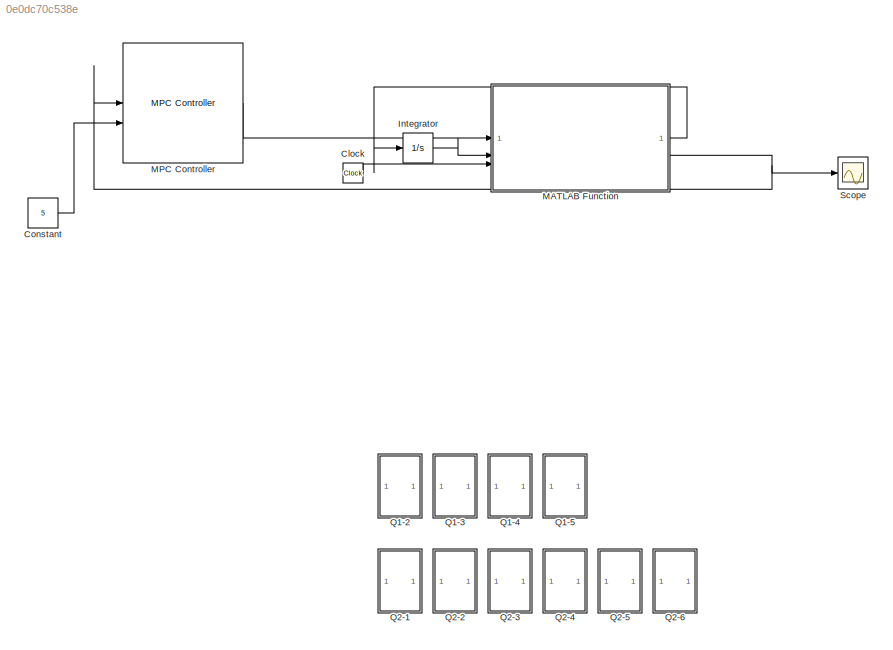
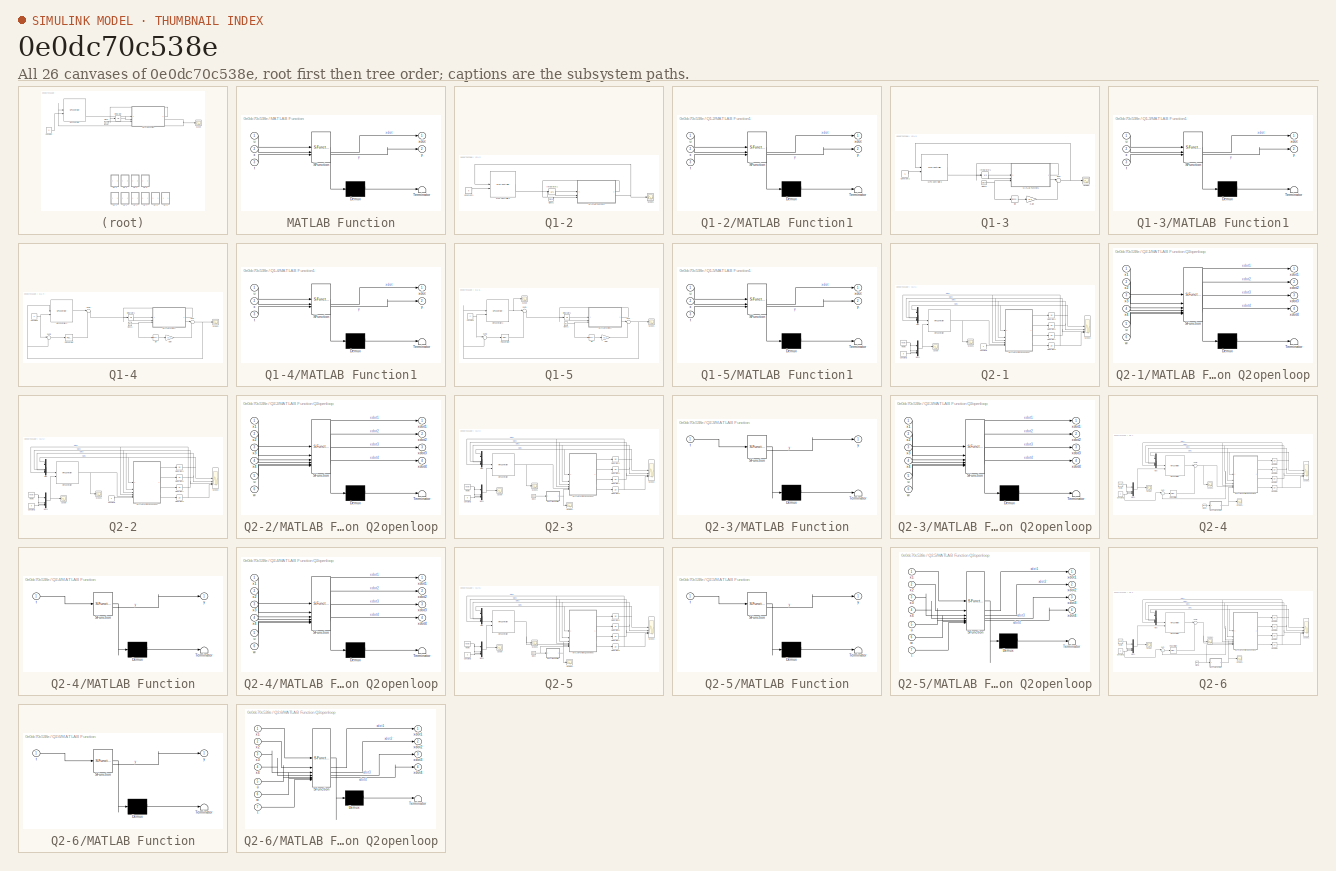
[diagram: thumbnail index - all 26 canvases of the model, root first then tree order]
MODEL slx_0e0dc70c538e
KIND model
CONFIG AbsTol = auto
CONFIG EnableMultiTasking = off
CONFIG FixedStep = auto
CONFIG MaxStep = auto
CONFIG MinStep = auto
CONFIG RelTol = 1e-3
CONFIG SampleTimeConstraint = Unconstrained
CONFIG SolverName = VariableStepAuto
CONFIG StartTime = 0.0
CONFIG StopTime = 50
BLOCK [Clock] Clock
  Commented = on
BLOCK [Constant] Constant
  Commented = on
  Value = 5
BLOCK [Integrator] Integrator
  Commented = on
  InitialCondition = [0 0 0 0]
BLOCK [SubSystem] MATLAB Function
  Commented = on
  ErrorFcn = Stateflow.Translate.translate
  LibrarySourceBlock = simulink/User-Defined\nFunctions/MATLAB Function
  PermitHierarchicalResolution = ExplicitOnly
  SFBlockType = MATLAB Function
  TreatAsAtomicUnit = on
BLOCK [Demux] MATLAB Function/ Demux 
  Outputs = 1
BLOCK [S-Function] MATLAB Function/ SFunction 
  EnableBusSupport = on
  FunctionName = sf_sfun
  PortCounts = [3 3]
  SFcnIsStateOwnerBlock = off
  SFunctionDeploymentMode = off
  Tag = Stateflow S-Function 2
BLOCK [Terminator] MATLAB Function/ Terminator 
BLOCK [Inport] MATLAB Function/t
  Port = 3
BLOCK [Inport] MATLAB Function/u
BLOCK [Inport] MATLAB Function/x
  Port = 2
BLOCK [Outport] MATLAB Function/xdot
BLOCK [Outport] MATLAB Function/y
  Port = 2
BLOCK [Reference] MPC Controller  REF=mpclib/MPC Controller  (lib defined in mdl_ae329e0e0455)
  Commented = on
  SCDEnableBlockLinearizationSpecification = on
  SourceBlock = mpclib/MPC Controller
  SourceType = MPC
BLOCK [SubSystem] Q1-2
  Commented = on
BLOCK [Clock] Q1-2/Clock1
BLOCK [Constant] Q1-2/Constant1
  Value = 5
BLOCK [Integrator] Q1-2/Integrator1
  InitialCondition = [0 0 0 0]
BLOCK [SubSystem] Q1-2/MATLAB Function1
  ErrorFcn = Stateflow.Translate.translate
  LibrarySourceBlock = simulink/User-Defined\nFunctions/MATLAB Function
  PermitHierarchicalResolution = ExplicitOnly
  SFBlockType = MATLAB Function
  TreatAsAtomicUnit = on
BLOCK [Demux] Q1-2/MATLAB Function1/ Demux 
  Outputs = 1
BLOCK [S-Function] Q1-2/MATLAB Function1/ SFunction 
  EnableBusSupport = on
  FunctionName = sf_sfun
  PortCounts = [3 3]
  SFcnIsStateOwnerBlock = off
  SFunctionDeploymentMode = off
  Tag = Stateflow S-Function 1
BLOCK [Terminator] Q1-2/MATLAB Function1/ Terminator 
BLOCK [Inport] Q1-2/MATLAB Function1/t
  Port = 3
BLOCK [Inport] Q1-2/MATLAB Function1/u
BLOCK [Inport] Q1-2/MATLAB Function1/x
  Port = 2
BLOCK [Outport] Q1-2/MATLAB Function1/xdot
BLOCK [Outport] Q1-2/MATLAB Function1/y
  Port = 2
BLOCK [Reference] Q1-2/MPC Controller1  REF=mpclib/MPC Controller  (lib defined in mdl_ae329e0e0455)
  SCDEnableBlockLinearizationSpecification = on
  SourceBlock = mpclib/MPC Controller
  SourceType = MPC
BLOCK [Scope] Q1-2/Scope1
  Floating = off
  NumInputPorts = 1
  ScopeSpecificationString = Simulink.scopes.TimeScopeBlockCfg('CurrentConfiguration', extmgr.ConfigurationSet(extmgr.Configuration('Core','General UI',true),extmgr.Configuration('Core','Source UI',true),extmgr.Configuration('Sources','WiredSimulink',true,'DataLoggingVariableName','ScopeData1'),extmgr.Configuration('Visuals','Time Domain',true,'SerializedDisplays',{struct('MinYLimReal','-0.62568','MaxYLimReal','5.63109','YLab...<+1406ch>
BLOCK [SubSystem] Q1-3
  Commented = on
BLOCK [Clock] Q1-3/Clock1
BLOCK [Constant] Q1-3/Constant1
  Value = 5
BLOCK [Gain] Q1-3/Gain
  Gain = 0.1
BLOCK [Integrator] Q1-3/Integrator1
  InitialCondition = [0 0 0 0]
BLOCK [SubSystem] Q1-3/MATLAB Function1
  ErrorFcn = Stateflow.Translate.translate
  LibrarySourceBlock = simulink/User-Defined\nFunctions/MATLAB Function
  PermitHierarchicalResolution = ExplicitOnly
  SFBlockType = MATLAB Function
  TreatAsAtomicUnit = on
BLOCK [Demux] Q1-3/MATLAB Function1/ Demux 
  Outputs = 1
BLOCK [S-Function] Q1-3/MATLAB Function1/ SFunction 
  EnableBusSupport = on
  FunctionName = sf_sfun
  PortCounts = [3 3]
  SFcnIsStateOwnerBlock = off
  SFunctionDeploymentMode = off
  Tag = Stateflow S-Function 3
BLOCK [Terminator] Q1-3/MATLAB Function1/ Terminator 
BLOCK [Inport] Q1-3/MATLAB Function1/t
  Port = 3
BLOCK [Inport] Q1-3/MATLAB Function1/u
BLOCK [Inport] Q1-3/MATLAB Function1/x
  Port = 2
BLOCK [Outport] Q1-3/MATLAB Function1/xdot
BLOCK [Outport] Q1-3/MATLAB Function1/y
  Port = 2
BLOCK [Reference] Q1-3/MPC Controller2  REF=mpclib/MPC Controller  (lib defined in mdl_ae329e0e0455)
  SCDEnableBlockLinearizationSpecification = on
  SourceBlock = mpclib/MPC Controller
  SourceType = MPC
BLOCK [Scope] Q1-3/Scope1
  Floating = off
  NumInputPorts = 1
  ScopeSpecificationString = Simulink.scopes.TimeScopeBlockCfg('CurrentConfiguration', extmgr.ConfigurationSet(extmgr.Configuration('Core','General UI',true),extmgr.Configuration('Core','Source UI',true),extmgr.Configuration('Sources','WiredSimulink',true,'DataLoggingVariableName','ScopeData1'),extmgr.Configuration('Visuals','Time Domain',true,'SerializedDisplays',{struct('MinYLimReal','-0.64453','MaxYLimReal','5.80081','YLab...<+1391ch>
BLOCK [Trigonometry] Q1-3/Sin
BLOCK [Sum] Q1-3/Sum
  Inputs = |++
BLOCK [SubSystem] Q1-4
  Commented = on
BLOCK [Clock] Q1-4/Clock1
BLOCK [Constant] Q1-4/Constant1
  Value = 5
BLOCK [Gain] Q1-4/Gain
  Gain = 0.1
BLOCK [Integrator] Q1-4/Integrator1
  InitialCondition = [0 0 0 0]
BLOCK [SubSystem] Q1-4/MATLAB Function1
  ErrorFcn = Stateflow.Translate.translate
  LibrarySourceBlock = simulink/User-Defined\nFunctions/MATLAB Function
  PermitHierarchicalResolution = ExplicitOnly
  SFBlockType = MATLAB Function
  TreatAsAtomicUnit = on
BLOCK [Demux] Q1-4/MATLAB Function1/ Demux 
  Outputs = 1
BLOCK [S-Function] Q1-4/MATLAB Function1/ SFunction 
  EnableBusSupport = on
  FunctionName = sf_sfun
  PortCounts = [3 3]
  SFcnIsStateOwnerBlock = off
  SFunctionDeploymentMode = off
  Tag = Stateflow S-Function 4
BLOCK [Terminator] Q1-4/MATLAB Function1/ Terminator 
BLOCK [Inport] Q1-4/MATLAB Function1/t
  Port = 3
BLOCK [Inport] Q1-4/MATLAB Function1/u
BLOCK [Inport] Q1-4/MATLAB Function1/x
  Port = 2
BLOCK [Outport] Q1-4/MATLAB Function1/xdot
BLOCK [Outport] Q1-4/MATLAB Function1/y
  Port = 2
BLOCK [Reference] Q1-4/MPC Controller2  REF=mpclib/MPC Controller  (lib defined in mdl_ae329e0e0455)
  SCDEnableBlockLinearizationSpecification = on
  SourceBlock = mpclib/MPC Controller
  SourceType = MPC
BLOCK [Reference] Q1-4/PID Controller  REF=slpidlib/PID Controller
  LibrarySourceBlock = simulink/Continuous/PID Controller
  SourceBlock = slpidlib/PID Controller
  SourceType = PID 1dof
BLOCK [Scope] Q1-4/Scope1
  Floating = off
  NumInputPorts = 1
  ScopeSpecificationString = Simulink.scopes.TimeScopeBlockCfg('CurrentConfiguration', extmgr.ConfigurationSet(extmgr.Configuration('Core','General UI',true),extmgr.Configuration('Core','Source UI',true),extmgr.Configuration('Sources','WiredSimulink',true,'DataLoggingVariableName','ScopeData1'),extmgr.Configuration('Visuals','Time Domain',true,'SerializedDisplays',{struct('MinYLimReal','4.47925','MaxYLimReal','5.93772','YLabe...<+1741ch>
BLOCK [Trigonometry] Q1-4/Sin
BLOCK [Sum] Q1-4/Sum
  Inputs = |++
BLOCK [Sum] Q1-4/Sum1
  Inputs = |++
BLOCK [Sum] Q1-4/Sum2
  Inputs = |+-
BLOCK [SubSystem] Q1-5
  Commented = on
BLOCK [Clock] Q1-5/Clock1
BLOCK [Constant] Q1-5/Constant1
  Value = 5
BLOCK [Gain] Q1-5/Gain
  Gain = 0.1
BLOCK [Integrator] Q1-5/Integrator1
  InitialCondition = [0 0 0 0]
BLOCK [SubSystem] Q1-5/MATLAB Function1
  ErrorFcn = Stateflow.Translate.translate
  LibrarySourceBlock = simulink/User-Defined\nFunctions/MATLAB Function
  PermitHierarchicalResolution = ExplicitOnly
  SFBlockType = MATLAB Function
  TreatAsAtomicUnit = on
BLOCK [Demux] Q1-5/MATLAB Function1/ Demux 
  Outputs = 1
BLOCK [S-Function] Q1-5/MATLAB Function1/ SFunction 
  EnableBusSupport = on
  FunctionName = sf_sfun
  PortCounts = [3 3]
  SFcnIsStateOwnerBlock = off
  SFunctionDeploymentMode = off
  Tag = Stateflow S-Function 5
BLOCK [Terminator] Q1-5/MATLAB Function1/ Terminator 
BLOCK [Inport] Q1-5/MATLAB Function1/t
  Port = 3
BLOCK [Inport] Q1-5/MATLAB Function1/u
BLOCK [Inport] Q1-5/MATLAB Function1/x
  Port = 2
BLOCK [Outport] Q1-5/MATLAB Function1/xdot
BLOCK [Outport] Q1-5/MATLAB Function1/y
  Port = 2
BLOCK [Reference] Q1-5/MPC Controller2  REF=mpclib/MPC Controller  (lib defined in mdl_ae329e0e0455)
  SCDEnableBlockLinearizationSpecification = on
  SourceBlock = mpclib/MPC Controller
  SourceType = MPC
BLOCK [Reference] Q1-5/PID Controller  REF=slpidlib/PID Controller
  LibrarySourceBlock = simulink/Continuous/PID Controller
  SourceBlock = slpidlib/PID Controller
  SourceType = PID 1dof
BLOCK [Scope] Q1-5/Scope
  Floating = off
  NumInputPorts = 1
  ScopeSpecificationString = Simulink.scopes.TimeScopeBlockCfg('CurrentConfiguration', extmgr.ConfigurationSet(extmgr.Configuration('Core','General UI',true),extmgr.Configuration('Core','Source UI',true),extmgr.Configuration('Sources','WiredSimulink',true,'DataLoggingVariableName','ScopeData1'),extmgr.Configuration('Visuals','Time Domain',true,'SerializedDisplays',{struct('MinYLimReal','-12.5','MaxYLimReal','12.5','YLabelReal...<+1416ch>
BLOCK [Scope] Q1-5/Scope1
  Floating = off
  NumInputPorts = 1
  ScopeSpecificationString = Simulink.scopes.TimeScopeBlockCfg('CurrentConfiguration', extmgr.ConfigurationSet(extmgr.Configuration('Core','General UI',true),extmgr.Configuration('Core','Source UI',true),extmgr.Configuration('Sources','WiredSimulink',true,'DataLoggingVariableName','ScopeData1'),extmgr.Configuration('Visuals','Time Domain',true,'SerializedDisplays',{struct('MinYLimReal','4.72544','MaxYLimReal','5.26561','YLabe...<+1430ch>
BLOCK [Trigonometry] Q1-5/Sin
BLOCK [Sum] Q1-5/Sum
  Inputs = |++
BLOCK [Sum] Q1-5/Sum1
  Inputs = |++
BLOCK [Sum] Q1-5/Sum2
  Inputs = |+-
BLOCK [SubSystem] Q2-1
  Commented = on
BLOCK [Constant] Q2-1/Constant1
  Value = 5
BLOCK [Constant] Q2-1/Constant4
  Value = 0
BLOCK [Integrator] Q2-1/Integrator5
BLOCK [Integrator] Q2-1/Integrator6
BLOCK [Integrator] Q2-1/Integrator7
BLOCK [Integrator] Q2-1/Integrator8
BLOCK [SubSystem] Q2-1/MATLAB Function Q2openloop
  ErrorFcn = Stateflow.Translate.translate
  LibrarySourceBlock = simulink/User-Defined\nFunctions/MATLAB Function
  PermitHierarchicalResolution = ExplicitOnly
  SFBlockType = MATLAB Function
  TreatAsAtomicUnit = on
BLOCK [Demux] Q2-1/MATLAB Function Q2openloop/ Demux 
  Outputs = 1
BLOCK [S-Function] Q2-1/MATLAB Function Q2openloop/ SFunction 
  EnableBusSupport = on
  FunctionName = sf_sfun
  PortCounts = [6 5]
  SFcnIsStateOwnerBlock = off
  SFunctionDeploymentMode = off
  Tag = Stateflow S-Function 7
BLOCK [Terminator] Q2-1/MATLAB Function Q2openloop/ Terminator 
BLOCK [Inport] Q2-1/MATLAB Function Q2openloop/u
  Port = 5
BLOCK [Inport] Q2-1/MATLAB Function Q2openloop/w
  Port = 6
BLOCK [Inport] Q2-1/MATLAB Function Q2openloop/x1
BLOCK [Inport] Q2-1/MATLAB Function Q2openloop/x2
  Port = 2
BLOCK [Inport] Q2-1/MATLAB Function Q2openloop/x3
  Port = 3
BLOCK [Inport] Q2-1/MATLAB Function Q2openloop/x4
  Port = 4
BLOCK [Outport] Q2-1/MATLAB Function Q2openloop/xdot1
BLOCK [Outport] Q2-1/MATLAB Function Q2openloop/xdot2
  Port = 2
BLOCK [Outport] Q2-1/MATLAB Function Q2openloop/xdot3
  Port = 3
BLOCK [Outport] Q2-1/MATLAB Function Q2openloop/xdot4
  Port = 4
BLOCK [Reference] Q2-1/MPC Controller  REF=mpclib/MPC Controller  (lib defined in mdl_ae329e0e0455)
  SCDEnableBlockLinearizationSpecification = on
  SourceBlock = mpclib/MPC Controller
  SourceType = MPC
BLOCK [Mux] Q2-1/Mux
  DisplayOption = bar
BLOCK [Mux] Q2-1/Mux1
  DisplayOption = bar
BLOCK [Reference] Q2-1/Ramp  REF=simulink/Sources/Ramp
  SourceBlock = simulink/Sources/Ramp
  SourceType = Ramp
BLOCK [Scope] Q2-1/Scope
  Floating = off
  NumInputPorts = 1
  ScopeSpecificationString = Simulink.scopes.TimeScopeBlockCfg('CurrentConfiguration', extmgr.ConfigurationSet(extmgr.Configuration('Core','General UI',true),extmgr.Configuration('Core','Source UI',true),extmgr.Configuration('Sources','WiredSimulink',true),extmgr.Configuration('Visuals','Time Domain',true,'SerializedDisplays',{struct('MinYLimReal','-6.25','MaxYLimReal','56.25','YLabelReal','','MinYLimMag','0.00000','MaxYLimMa...<+1370ch>
BLOCK [Scope] Q2-1/Scope1
  Floating = off
  NumInputPorts = 1
  ScopeSpecificationString = Simulink.scopes.TimeScopeBlockCfg('CurrentConfiguration', extmgr.ConfigurationSet(extmgr.Configuration('Core','General UI',true),extmgr.Configuration('Core','Source UI',true),extmgr.Configuration('Sources','WiredSimulink',true),extmgr.Configuration('Visuals','Time Domain',true,'SerializedDisplays',{struct('MinYLimReal','-850.71439','MaxYLimReal','3434.85821','YLabelReal','','MinYLimMag',' 0.00000'...<+1392ch>
BLOCK [Scope] Q2-1/Scope2
  Floating = off
  NumInputPorts = 4
  ScopeSpecificationString = Simulink.scopes.TimeScopeBlockCfg('CurrentConfiguration', extmgr.ConfigurationSet(extmgr.Configuration('Core','General UI',true),extmgr.Configuration('Core','Source UI',true),extmgr.Configuration('Sources','WiredSimulink',true),extmgr.Configuration('Visuals','Time Domain',true,'SerializedDisplays',{struct('MinYLimReal','-30.75052','MaxYLimReal','276.75471','YLabelReal','','MinYLimMag','0.00000','M...<+3425ch>
BLOCK [SubSystem] Q2-2
BLOCK [Constant] Q2-2/Constant1
  Value = 5
BLOCK [Constant] Q2-2/Constant4
  Value = 0
BLOCK [Integrator] Q2-2/Integrator5
BLOCK [Integrator] Q2-2/Integrator6
BLOCK [Integrator] Q2-2/Integrator7
BLOCK [Integrator] Q2-2/Integrator8
BLOCK [SubSystem] Q2-2/MATLAB Function Q2openloop
  ErrorFcn = Stateflow.Translate.translate
  LibrarySourceBlock = simulink/User-Defined\nFunctions/MATLAB Function
  PermitHierarchicalResolution = ExplicitOnly
  SFBlockType = MATLAB Function
  TreatAsAtomicUnit = on
BLOCK [Demux] Q2-2/MATLAB Function Q2openloop/ Demux 
  Outputs = 1
BLOCK [S-Function] Q2-2/MATLAB Function Q2openloop/ SFunction 
  EnableBusSupport = on
  FunctionName = sf_sfun
  PortCounts = [6 5]
  SFcnIsStateOwnerBlock = off
  SFunctionDeploymentMode = off
  Tag = Stateflow S-Function 6
BLOCK [Terminator] Q2-2/MATLAB Function Q2openloop/ Terminator 
BLOCK [Inport] Q2-2/MATLAB Function Q2openloop/u
  Port = 5
BLOCK [Inport] Q2-2/MATLAB Function Q2openloop/w
  Port = 6
BLOCK [Inport] Q2-2/MATLAB Function Q2openloop/x1
BLOCK [Inport] Q2-2/MATLAB Function Q2openloop/x2
  Port = 2
BLOCK [Inport] Q2-2/MATLAB Function Q2openloop/x3
  Port = 3
BLOCK [Inport] Q2-2/MATLAB Function Q2openloop/x4
  Port = 4
BLOCK [Outport] Q2-2/MATLAB Function Q2openloop/xdot1
BLOCK [Outport] Q2-2/MATLAB Function Q2openloop/xdot2
  Port = 2
BLOCK [Outport] Q2-2/MATLAB Function Q2openloop/xdot3
  Port = 3
BLOCK [Outport] Q2-2/MATLAB Function Q2openloop/xdot4
  Port = 4
BLOCK [Reference] Q2-2/MPC Controller  REF=mpclib/MPC Controller  (lib defined in mdl_ae329e0e0455)
  SCDEnableBlockLinearizationSpecification = on
  SourceBlock = mpclib/MPC Controller
  SourceType = MPC
BLOCK [Mux] Q2-2/Mux
  DisplayOption = bar
BLOCK [Mux] Q2-2/Mux1
  DisplayOption = bar
BLOCK [Reference] Q2-2/Ramp  REF=simulink/Sources/Ramp
  SourceBlock = simulink/Sources/Ramp
  SourceType = Ramp
BLOCK [Scope] Q2-2/Scope
  Floating = off
  NumInputPorts = 1
  ScopeSpecificationString = Simulink.scopes.TimeScopeBlockCfg
BLOCK [Scope] Q2-2/Scope1
  Floating = off
  NumInputPorts = 1
  ScopeSpecificationString = Simulink.scopes.TimeScopeBlockCfg('CurrentConfiguration', extmgr.ConfigurationSet(extmgr.Configuration('Core','General UI',true),extmgr.Configuration('Core','Source UI',true),extmgr.Configuration('Sources','WiredSimulink',true),extmgr.Configuration('Visuals','Time Domain',true,'SerializedDisplays',{struct('MinYLimReal','-851.54906','MaxYLimReal','3434.95095','YLabelReal','','MinYLimMag',' 0.00000'...<+1452ch>
BLOCK [Scope] Q2-2/Scope2
  Floating = off
  NumInputPorts = 4
  ScopeSpecificationString = Simulink.scopes.TimeScopeBlockCfg('CurrentConfiguration', extmgr.ConfigurationSet(extmgr.Configuration('Core','General UI',true),extmgr.Configuration('Core','Source UI',true),extmgr.Configuration('Sources','WiredSimulink',true),extmgr.Configuration('Visuals','Time Domain',true,'SerializedDisplays',{struct('MinYLimReal','-5.65537','MaxYLimReal','50.89831','YLabelReal','','MinYLimMag','0.00000','Max...<+3508ch>
BLOCK [SubSystem] Q2-3
  Commented = on
BLOCK [Clock] Q2-3/Clock
BLOCK [Constant] Q2-3/Constant1
  Value = 5
BLOCK [Integrator] Q2-3/Integrator5
BLOCK [Integrator] Q2-3/Integrator6
BLOCK [Integrator] Q2-3/Integrator7
BLOCK [Integrator] Q2-3/Integrator8
BLOCK [SubSystem] Q2-3/MATLAB Function
  ErrorFcn = Stateflow.Translate.translate
  LibrarySourceBlock = simulink/User-Defined\nFunctions/MATLAB Function
  PermitHierarchicalResolution = ExplicitOnly
  SFBlockType = MATLAB Function
  TreatAsAtomicUnit = on
BLOCK [SubSystem] Q2-3/MATLAB Function Q2openloop
  ErrorFcn = Stateflow.Translate.translate
  LibrarySourceBlock = simulink/User-Defined\nFunctions/MATLAB Function
  PermitHierarchicalResolution = ExplicitOnly
  SFBlockType = MATLAB Function
  TreatAsAtomicUnit = on
BLOCK [Demux] Q2-3/MATLAB Function Q2openloop/ Demux 
  Outputs = 1
BLOCK [S-Function] Q2-3/MATLAB Function Q2openloop/ SFunction 
  EnableBusSupport = on
  FunctionName = sf_sfun
  PortCounts = [6 5]
  SFcnIsStateOwnerBlock = off
  SFunctionDeploymentMode = off
  Tag = Stateflow S-Function 8
BLOCK [Terminator] Q2-3/MATLAB Function Q2openloop/ Terminator 
BLOCK [Inport] Q2-3/MATLAB Function Q2openloop/u
  Port = 5
BLOCK [Inport] Q2-3/MATLAB Function Q2openloop/w
  Port = 6
BLOCK [Inport] Q2-3/MATLAB Function Q2openloop/x1
BLOCK [Inport] Q2-3/MATLAB Function Q2openloop/x2
  Port = 2
BLOCK [Inport] Q2-3/MATLAB Function Q2openloop/x3
  Port = 3
BLOCK [Inport] Q2-3/MATLAB Function Q2openloop/x4
  Port = 4
BLOCK [Outport] Q2-3/MATLAB Function Q2openloop/xdot1
BLOCK [Outport] Q2-3/MATLAB Function Q2openloop/xdot2
  Port = 2
BLOCK [Outport] Q2-3/MATLAB Function Q2openloop/xdot3
  Port = 3
BLOCK [Outport] Q2-3/MATLAB Function Q2openloop/xdot4
  Port = 4
BLOCK [Demux] Q2-3/MATLAB Function/ Demux 
  Outputs = 1
BLOCK [S-Function] Q2-3/MATLAB Function/ SFunction 
  EnableBusSupport = on
  FunctionName = sf_sfun
  PortCounts = [1 2]
  SFcnIsStateOwnerBlock = off
  SFunctionDeploymentMode = off
  Tag = Stateflow S-Function 9
BLOCK [Terminator] Q2-3/MATLAB Function/ Terminator 
BLOCK [Inport] Q2-3/MATLAB Function/t
BLOCK [Outport] Q2-3/MATLAB Function/y
BLOCK [Reference] Q2-3/MPC Controller  REF=mpclib/MPC Controller  (lib defined in mdl_ae329e0e0455)
  SCDEnableBlockLinearizationSpecification = on
  SourceBlock = mpclib/MPC Controller
  SourceType = MPC
BLOCK [Mux] Q2-3/Mux
  DisplayOption = bar
BLOCK [Mux] Q2-3/Mux1
  DisplayOption = bar
BLOCK [Reference] Q2-3/Ramp  REF=simulink/Sources/Ramp
  SourceBlock = simulink/Sources/Ramp
  SourceType = Ramp
BLOCK [Scope] Q2-3/Scope
  Floating = off
  NumInputPorts = 1
  ScopeSpecificationString = Simulink.scopes.TimeScopeBlockCfg
BLOCK [Scope] Q2-3/Scope1
  Floating = off
  NumInputPorts = 1
  ScopeSpecificationString = Simulink.scopes.TimeScopeBlockCfg('CurrentConfiguration', extmgr.ConfigurationSet(extmgr.Configuration('Core','General UI',true),extmgr.Configuration('Core','Source UI',true),extmgr.Configuration('Sources','WiredSimulink',true),extmgr.Configuration('Visuals','Time Domain',true,'SerializedDisplays',{struct('MinYLimReal','-915.54151','MaxYLimReal','8238.9216','YLabelReal','','MinYLimMag',' 0.00000',...<+1448ch>
BLOCK [Scope] Q2-3/Scope2
  Floating = off
  NumInputPorts = 4
  ScopeSpecificationString = Simulink.scopes.TimeScopeBlockCfg('CurrentConfiguration', extmgr.ConfigurationSet(extmgr.Configuration('Core','General UI',true),extmgr.Configuration('Core','Source UI',true),extmgr.Configuration('Sources','WiredSimulink',true),extmgr.Configuration('Visuals','Time Domain',true,'SerializedDisplays',{struct('MinYLimReal','-3.25537','MaxYLimReal','29.29831','YLabelReal','','MinYLimMag','0.00000','Max...<+3461ch>
BLOCK [Scope] Q2-3/Scope3
  Floating = off
  NumInputPorts = 1
  ScopeSpecificationString = Simulink.scopes.TimeScopeBlockCfg('CurrentConfiguration', extmgr.ConfigurationSet(extmgr.Configuration('Core','General UI',true),extmgr.Configuration('Core','Source UI',true),extmgr.Configuration('Sources','WiredSimulink',true,'DataLoggingVariableName','ScopeData1'),extmgr.Configuration('Visuals','Time Domain',true,'SerializedDisplays',{struct('MinYLimReal','-499.01336','MaxYLimReal','499.01336','...<+1488ch>  <repeated x4 — deduplicated; at blocks: Scope3>
BLOCK [SubSystem] Q2-4
  Commented = on
BLOCK [Clock] Q2-4/Clock
BLOCK [Constant] Q2-4/Constant1
  Value = 3
BLOCK [Integrator] Q2-4/Integrator5
BLOCK [Integrator] Q2-4/Integrator6
BLOCK [Integrator] Q2-4/Integrator7
BLOCK [Integrator] Q2-4/Integrator8
BLOCK [SubSystem] Q2-4/MATLAB Function
  ErrorFcn = Stateflow.Translate.translate
  LibrarySourceBlock = simulink/User-Defined\nFunctions/MATLAB Function
  PermitHierarchicalResolution = ExplicitOnly
  SFBlockType = MATLAB Function
  TreatAsAtomicUnit = on
BLOCK [SubSystem] Q2-4/MATLAB Function Q2openloop
  ErrorFcn = Stateflow.Translate.translate
  LibrarySourceBlock = simulink/User-Defined\nFunctions/MATLAB Function
  PermitHierarchicalResolution = ExplicitOnly
  SFBlockType = MATLAB Function
  TreatAsAtomicUnit = on
BLOCK [Demux] Q2-4/MATLAB Function Q2openloop/ Demux 
  Outputs = 1
BLOCK [S-Function] Q2-4/MATLAB Function Q2openloop/ SFunction 
  EnableBusSupport = on
  FunctionName = sf_sfun
  PortCounts = [6 5]
  SFcnIsStateOwnerBlock = off
  SFunctionDeploymentMode = off
  Tag = Stateflow S-Function 11
BLOCK [Terminator] Q2-4/MATLAB Function Q2openloop/ Terminator 
BLOCK [Inport] Q2-4/MATLAB Function Q2openloop/u
  Port = 5
BLOCK [Inport] Q2-4/MATLAB Function Q2openloop/w
  Port = 6
BLOCK [Inport] Q2-4/MATLAB Function Q2openloop/x1
BLOCK [Inport] Q2-4/MATLAB Function Q2openloop/x2
  Port = 2
BLOCK [Inport] Q2-4/MATLAB Function Q2openloop/x3
  Port = 3
BLOCK [Inport] Q2-4/MATLAB Function Q2openloop/x4
  Port = 4
BLOCK [Outport] Q2-4/MATLAB Function Q2openloop/xdot1
BLOCK [Outport] Q2-4/MATLAB Function Q2openloop/xdot2
  Port = 2
BLOCK [Outport] Q2-4/MATLAB Function Q2openloop/xdot3
  Port = 3
BLOCK [Outport] Q2-4/MATLAB Function Q2openloop/xdot4
  Port = 4
BLOCK [Demux] Q2-4/MATLAB Function/ Demux 
  Outputs = 1
BLOCK [S-Function] Q2-4/MATLAB Function/ SFunction 
  EnableBusSupport = on
  FunctionName = sf_sfun
  PortCounts = [1 2]
  SFcnIsStateOwnerBlock = off
  SFunctionDeploymentMode = off
  Tag = Stateflow S-Function 10
BLOCK [Terminator] Q2-4/MATLAB Function/ Terminator 
BLOCK [Inport] Q2-4/MATLAB Function/t
BLOCK [Outport] Q2-4/MATLAB Function/y
BLOCK [Reference] Q2-4/MPC Controller  REF=mpclib/MPC Controller  (lib defined in mdl_ae329e0e0455)
  SCDEnableBlockLinearizationSpecification = on
  SourceBlock = mpclib/MPC Controller
  SourceType = MPC
BLOCK [Mux] Q2-4/Mux
  DisplayOption = bar
BLOCK [Mux] Q2-4/Mux1
  DisplayOption = bar
BLOCK [Reference] Q2-4/PID Controller  REF=slpidlib/PID Controller
  LibrarySourceBlock = simulink/Continuous/PID Controller
  SourceBlock = slpidlib/PID Controller
  SourceType = PID 1dof
BLOCK [Reference] Q2-4/Ramp  REF=simulink/Sources/Ramp
  SourceBlock = simulink/Sources/Ramp
  SourceType = Ramp
BLOCK [Scope] Q2-4/Scope
  Floating = off
  NumInputPorts = 1
  ScopeSpecificationString = Simulink.scopes.TimeScopeBlockCfg('CurrentConfiguration', extmgr.ConfigurationSet(extmgr.Configuration('Core','General UI',true),extmgr.Configuration('Core','Source UI',true),extmgr.Configuration('Sources','WiredSimulink',true),extmgr.Configuration('Visuals','Time Domain',true,'SerializedDisplays',{struct('MinYLimReal','-3.82875','MaxYLimReal','34.45875','YLabelReal','','MinYLimMag','0.00000','Max...<+1359ch>
BLOCK [Scope] Q2-4/Scope1
  Floating = off
  NumInputPorts = 1
  ScopeSpecificationString = Simulink.scopes.TimeScopeBlockCfg('CurrentConfiguration', extmgr.ConfigurationSet(extmgr.Configuration('Core','General UI',true),extmgr.Configuration('Core','Source UI',true),extmgr.Configuration('Sources','WiredSimulink',true),extmgr.Configuration('Visuals','Time Domain',true,'SerializedDisplays',{struct('MinYLimReal','-7766.4998','MaxYLimReal','49270.16951','YLabelReal','','MinYLimMag','  0.0000...<+1444ch>
BLOCK [Scope] Q2-4/Scope2
  Floating = off
  NumInputPorts = 4
  ScopeSpecificationString = Simulink.scopes.TimeScopeBlockCfg('CurrentConfiguration', extmgr.ConfigurationSet(extmgr.Configuration('Core','General UI',true),extmgr.Configuration('Core','Source UI',true),extmgr.Configuration('Sources','WiredSimulink',true),extmgr.Configuration('Visuals','Time Domain',true,'SerializedDisplays',{struct('MinYLimReal','-18.45713','MaxYLimReal','166.11413','YLabelReal','','MinYLimMag','0.00000','M...<+3459ch>
BLOCK [Scope] Q2-4/Scope3
  Floating = off
  NumInputPorts = 1
BLOCK [Sum] Q2-4/Sum
  Inputs = |+-
BLOCK [Sum] Q2-4/Sum1
  Inputs = |++
BLOCK [SubSystem] Q2-5
  Commented = on
BLOCK [Clock] Q2-5/Clock
BLOCK [Constant] Q2-5/Constant1
  Value = 3
BLOCK [Integrator] Q2-5/Integrator5
BLOCK [Integrator] Q2-5/Integrator6
BLOCK [Integrator] Q2-5/Integrator7
BLOCK [Integrator] Q2-5/Integrator8
BLOCK [SubSystem] Q2-5/MATLAB Function
  ErrorFcn = Stateflow.Translate.translate
  LibrarySourceBlock = simulink/User-Defined\nFunctions/MATLAB Function
  PermitHierarchicalResolution = ExplicitOnly
  SFBlockType = MATLAB Function
  TreatAsAtomicUnit = on
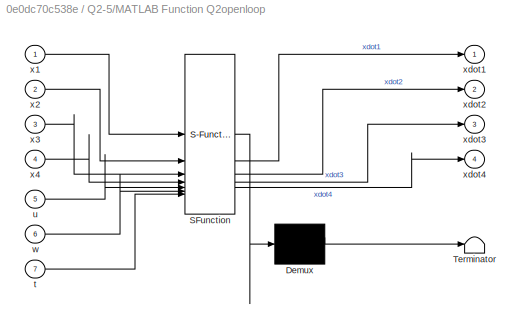
BLOCK [SubSystem] Q2-5/MATLAB Function Q2openloop
  ErrorFcn = Stateflow.Translate.translate
  LibrarySourceBlock = simulink/User-Defined\nFunctions/MATLAB Function
  PermitHierarchicalResolution = ExplicitOnly
  SFBlockType = MATLAB Function
  TreatAsAtomicUnit = on
BLOCK [Demux] Q2-5/MATLAB Function Q2openloop/ Demux 
  Outputs = 1
BLOCK [S-Function] Q2-5/MATLAB Function Q2openloop/ SFunction 
  EnableBusSupport = on
  FunctionName = sf_sfun
  PortCounts = [7 5]
  SFcnIsStateOwnerBlock = off
  SFunctionDeploymentMode = off
  Tag = Stateflow S-Function 15
BLOCK [Terminator] Q2-5/MATLAB Function Q2openloop/ Terminator 
BLOCK [Inport] Q2-5/MATLAB Function Q2openloop/t
  Port = 7
BLOCK [Inport] Q2-5/MATLAB Function Q2openloop/u
  Port = 5
BLOCK [Inport] Q2-5/MATLAB Function Q2openloop/w
  Port = 6
BLOCK [Inport] Q2-5/MATLAB Function Q2openloop/x1
BLOCK [Inport] Q2-5/MATLAB Function Q2openloop/x2
  Port = 2
BLOCK [Inport] Q2-5/MATLAB Function Q2openloop/x3
  Port = 3
BLOCK [Inport] Q2-5/MATLAB Function Q2openloop/x4
  Port = 4
BLOCK [Outport] Q2-5/MATLAB Function Q2openloop/xdot1
BLOCK [Outport] Q2-5/MATLAB Function Q2openloop/xdot2
  Port = 2
BLOCK [Outport] Q2-5/MATLAB Function Q2openloop/xdot3
  Port = 3
BLOCK [Outport] Q2-5/MATLAB Function Q2openloop/xdot4
  Port = 4
BLOCK [Demux] Q2-5/MATLAB Function/ Demux 
  Outputs = 1
BLOCK [S-Function] Q2-5/MATLAB Function/ SFunction 
  EnableBusSupport = on
  FunctionName = sf_sfun
  PortCounts = [1 2]
  SFcnIsStateOwnerBlock = off
  SFunctionDeploymentMode = off
  Tag = Stateflow S-Function 14
BLOCK [Terminator] Q2-5/MATLAB Function/ Terminator 
BLOCK [Inport] Q2-5/MATLAB Function/t
BLOCK [Outport] Q2-5/MATLAB Function/y
BLOCK [Reference] Q2-5/MPC Controller  REF=mpclib/MPC Controller  (lib defined in mdl_ae329e0e0455)
  SCDEnableBlockLinearizationSpecification = on
  SourceBlock = mpclib/MPC Controller
  SourceType = MPC
BLOCK [Mux] Q2-5/Mux
  DisplayOption = bar
BLOCK [Mux] Q2-5/Mux1
  DisplayOption = bar
BLOCK [Reference] Q2-5/Ramp  REF=simulink/Sources/Ramp
  SourceBlock = simulink/Sources/Ramp
  SourceType = Ramp
BLOCK [Scope] Q2-5/Scope
  Floating = off
  NumInputPorts = 1
  ScopeSpecificationString = Simulink.scopes.TimeScopeBlockCfg
BLOCK [Scope] Q2-5/Scope1
  Floating = off
  NumInputPorts = 1
  ScopeSpecificationString = Simulink.scopes.TimeScopeBlockCfg('CurrentConfiguration', extmgr.ConfigurationSet(extmgr.Configuration('Core','General UI',true),extmgr.Configuration('Core','Source UI',true),extmgr.Configuration('Sources','WiredSimulink',true),extmgr.Configuration('Visuals','Time Domain',true,'SerializedDisplays',{struct('MinYLimReal','-691.02497','MaxYLimReal','3482.17685','YLabelReal','','MinYLimMag',' 0.00000'...<+1452ch>
BLOCK [Scope] Q2-5/Scope2
  Floating = off
  NumInputPorts = 4
  ScopeSpecificationString = Simulink.scopes.TimeScopeBlockCfg('CurrentConfiguration', extmgr.ConfigurationSet(extmgr.Configuration('Core','General UI',true),extmgr.Configuration('Core','Source UI',true),extmgr.Configuration('Sources','WiredSimulink',true),extmgr.Configuration('Visuals','Time Domain',true,'SerializedDisplays',{struct('MinYLimReal','-3.29037','MaxYLimReal','29.61334','YLabelReal','','MinYLimMag','0.00000','Max...<+3459ch>
BLOCK [Scope] Q2-5/Scope3
  Floating = off
  NumInputPorts = 1
BLOCK [SubSystem] Q2-6
  Commented = on
BLOCK [Clock] Q2-6/Clock
BLOCK [Constant] Q2-6/Constant1
  Value = 3
BLOCK [Integrator] Q2-6/Integrator5
BLOCK [Integrator] Q2-6/Integrator6
BLOCK [Integrator] Q2-6/Integrator7
BLOCK [Integrator] Q2-6/Integrator8
BLOCK [SubSystem] Q2-6/MATLAB Function
  ErrorFcn = Stateflow.Translate.translate
  LibrarySourceBlock = simulink/User-Defined\nFunctions/MATLAB Function
  PermitHierarchicalResolution = ExplicitOnly
  SFBlockType = MATLAB Function
  TreatAsAtomicUnit = on
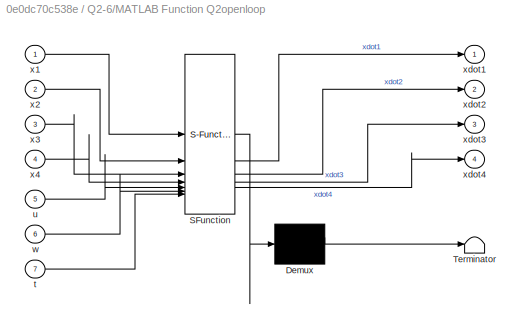
BLOCK [SubSystem] Q2-6/MATLAB Function Q2openloop
  ErrorFcn = Stateflow.Translate.translate
  LibrarySourceBlock = simulink/User-Defined\nFunctions/MATLAB Function
  PermitHierarchicalResolution = ExplicitOnly
  SFBlockType = MATLAB Function
  TreatAsAtomicUnit = on
BLOCK [Demux] Q2-6/MATLAB Function Q2openloop/ Demux 
  Outputs = 1
BLOCK [S-Function] Q2-6/MATLAB Function Q2openloop/ SFunction 
  EnableBusSupport = on
  FunctionName = sf_sfun
  PortCounts = [7 5]
  SFcnIsStateOwnerBlock = off
  SFunctionDeploymentMode = off
  Tag = Stateflow S-Function 13
BLOCK [Terminator] Q2-6/MATLAB Function Q2openloop/ Terminator 
BLOCK [Inport] Q2-6/MATLAB Function Q2openloop/t
  Port = 7
BLOCK [Inport] Q2-6/MATLAB Function Q2openloop/u
  Port = 5
BLOCK [Inport] Q2-6/MATLAB Function Q2openloop/w
  Port = 6
BLOCK [Inport] Q2-6/MATLAB Function Q2openloop/x1
BLOCK [Inport] Q2-6/MATLAB Function Q2openloop/x2
  Port = 2
BLOCK [Inport] Q2-6/MATLAB Function Q2openloop/x3
  Port = 3
BLOCK [Inport] Q2-6/MATLAB Function Q2openloop/x4
  Port = 4
BLOCK [Outport] Q2-6/MATLAB Function Q2openloop/xdot1
BLOCK [Outport] Q2-6/MATLAB Function Q2openloop/xdot2
  Port = 2
BLOCK [Outport] Q2-6/MATLAB Function Q2openloop/xdot3
  Port = 3
BLOCK [Outport] Q2-6/MATLAB Function Q2openloop/xdot4
  Port = 4
BLOCK [Demux] Q2-6/MATLAB Function/ Demux 
  Outputs = 1
BLOCK [S-Function] Q2-6/MATLAB Function/ SFunction 
  EnableBusSupport = on
  FunctionName = sf_sfun
  PortCounts = [1 2]
  SFcnIsStateOwnerBlock = off
  SFunctionDeploymentMode = off
  Tag = Stateflow S-Function 12
BLOCK [Terminator] Q2-6/MATLAB Function/ Terminator 
BLOCK [Inport] Q2-6/MATLAB Function/t
BLOCK [Outport] Q2-6/MATLAB Function/y
BLOCK [Reference] Q2-6/MPC Controller  REF=mpclib/MPC Controller  (lib defined in mdl_ae329e0e0455)
  SCDEnableBlockLinearizationSpecification = on
  SourceBlock = mpclib/MPC Controller
  SourceType = MPC
BLOCK [Mux] Q2-6/Mux
  DisplayOption = bar
BLOCK [Mux] Q2-6/Mux1
  DisplayOption = bar
BLOCK [Reference] Q2-6/PID Controller  REF=slpidlib/PID Controller
  LibrarySourceBlock = simulink/Continuous/PID Controller
  SourceBlock = slpidlib/PID Controller
  SourceType = PID 1dof
BLOCK [Reference] Q2-6/Ramp  REF=simulink/Sources/Ramp
  SourceBlock = simulink/Sources/Ramp
  SourceType = Ramp
BLOCK [Scope] Q2-6/Scope
  Floating = off
  NumInputPorts = 1
  ScopeSpecificationString = Simulink.scopes.TimeScopeBlockCfg('CurrentConfiguration', extmgr.ConfigurationSet(extmgr.Configuration('Core','General UI',true),extmgr.Configuration('Core','Source UI',true),extmgr.Configuration('Sources','WiredSimulink',true),extmgr.Configuration('Visuals','Time Domain',true,'SerializedDisplays',{struct('MinYLimReal','-3.82875','MaxYLimReal','34.45875','YLabelReal','','MinYLimMag','0.00000','Max...<+1359ch>
BLOCK [Scope] Q2-6/Scope1
  Floating = off
  NumInputPorts = 1
  ScopeSpecificationString = Simulink.scopes.TimeScopeBlockCfg('CurrentConfiguration', extmgr.ConfigurationSet(extmgr.Configuration('Core','General UI',true),extmgr.Configuration('Core','Source UI',true),extmgr.Configuration('Sources','WiredSimulink',true),extmgr.Configuration('Visuals','Time Domain',true,'SerializedDisplays',{struct('MinYLimReal','-4143.25812','MaxYLimReal','34460.36201','YLabelReal','','MinYLimMag','  0.000...<+1450ch>
BLOCK [Scope] Q2-6/Scope2
  Floating = off
  NumInputPorts = 4
  ScopeSpecificationString = Simulink.scopes.TimeScopeBlockCfg('CurrentConfiguration', extmgr.ConfigurationSet(extmgr.Configuration('Core','General UI',true),extmgr.Configuration('Core','Source UI',true),extmgr.Configuration('Sources','WiredSimulink',true),extmgr.Configuration('Visuals','Time Domain',true,'SerializedDisplays',{struct('MinYLimReal','-7.39127','MaxYLimReal','66.52147','YLabelReal','','MinYLimMag','0.00000','Max...<+3485ch>
BLOCK [Scope] Q2-6/Scope3
  Floating = off
  NumInputPorts = 1
BLOCK [Sum] Q2-6/Sum
  Inputs = |+-
BLOCK [Sum] Q2-6/Sum1
  Inputs = |++
BLOCK [Scope] Scope
  Commented = on
  Floating = off
  NumInputPorts = 1
  ScopeSpecificationString = Simulink.scopes.TimeScopeBlockCfg('CurrentConfiguration', extmgr.ConfigurationSet(extmgr.Configuration('Core','General UI',true),extmgr.Configuration('Core','Source UI',true),extmgr.Configuration('Sources','WiredSimulink',true),extmgr.Configuration('Visuals','Time Domain',true),extmgr.Configuration('Tools','Plot Navigation',true),extmgr.Configuration('Tools','Measurements',true,'Version','2022b'))...<+19ch>
LINE Clock:1 -> MATLAB Function:3
LINE Constant:1 -> MPC Controller:2
LINE Integrator:1 -> MATLAB Function:2
LINE MATLAB Function:1 -> Integrator:1
NET MATLAB Function:2 -> MPC Controller:1, Scope:1
LINE MPC Controller:1 -> MATLAB Function:1
LINE Q1-2/Clock1:1 -> Q1-2/MATLAB Function1:3
LINE Q1-2/Constant1:1 -> Q1-2/MPC Controller1:2
LINE Q1-2/Integrator1:1 -> Q1-2/MATLAB Function1:2
LINE Q1-2/MATLAB Function1:1 -> Q1-2/Integrator1:1
NET Q1-2/MATLAB Function1:2 -> Q1-2/MPC Controller1:1, Q1-2/Scope1:1
LINE Q1-2/MPC Controller1:1 -> Q1-2/MATLAB Function1:1
NET Q1-3/Clock1:1 -> Q1-3/MATLAB Function1:3, Q1-3/Sin:1
LINE Q1-3/Constant1:1 -> Q1-3/MPC Controller2:2
LINE Q1-3/Gain:1 -> Q1-3/Sum:2
LINE Q1-3/Integrator1:1 -> Q1-3/MATLAB Function1:2
LINE Q1-3/MATLAB Function1:1 -> Q1-3/Integrator1:1
LINE Q1-3/MATLAB Function1:2 -> Q1-3/Sum:1
LINE Q1-3/MPC Controller2:1 -> Q1-3/MATLAB Function1:1
LINE Q1-3/Sin:1 -> Q1-3/Gain:1
NET Q1-3/Sum:1 -> Q1-3/MPC Controller2:1, Q1-3/Scope1:1
NET Q1-4/Clock1:1 -> Q1-4/MATLAB Function1:3, Q1-4/Sin:1
NET Q1-4/Constant1:1 -> Q1-4/MPC Controller2:2, Q1-4/Sum2:1
LINE Q1-4/Gain:1 -> Q1-4/Sum:2
LINE Q1-4/Integrator1:1 -> Q1-4/MATLAB Function1:2
LINE Q1-4/MATLAB Function1:1 -> Q1-4/Integrator1:1
LINE Q1-4/MATLAB Function1:2 -> Q1-4/Sum:1
LINE Q1-4/MPC Controller2:1 -> Q1-4/Sum1:1
LINE Q1-4/PID Controller:1 -> Q1-4/Sum1:2
LINE Q1-4/Sin:1 -> Q1-4/Gain:1
LINE Q1-4/Sum1:1 -> Q1-4/MATLAB Function1:1
LINE Q1-4/Sum2:1 -> Q1-4/PID Controller:1
NET Q1-4/Sum:1 -> Q1-4/MPC Controller2:1, Q1-4/Scope1:1, Q1-4/Sum2:2
NET Q1-5/Clock1:1 -> Q1-5/MATLAB Function1:3, Q1-5/Sin:1
NET Q1-5/Constant1:1 -> Q1-5/MPC Controller2:2, Q1-5/Sum2:1
LINE Q1-5/Gain:1 -> Q1-5/Sum:2
LINE Q1-5/Integrator1:1 -> Q1-5/MATLAB Function1:2
LINE Q1-5/MATLAB Function1:1 -> Q1-5/Integrator1:1
LINE Q1-5/MATLAB Function1:2 -> Q1-5/Sum:1
NET Q1-5/MPC Controller2:1 -> Q1-5/Scope:1, Q1-5/Sum1:1
LINE Q1-5/PID Controller:1 -> Q1-5/Sum1:2
LINE Q1-5/Sin:1 -> Q1-5/Gain:1
LINE Q1-5/Sum1:1 -> Q1-5/MATLAB Function1:1
LINE Q1-5/Sum2:1 -> Q1-5/PID Controller:1
NET Q1-5/Sum:1 -> Q1-5/MPC Controller2:1, Q1-5/Scope1:1, Q1-5/Sum2:2
NET Q2-1/Constant1:1 -> Q2-1/Mux1:3, Q2-1/Mux1:4
LINE Q2-1/Constant4:1 -> Q2-1/MATLAB Function Q2openloop:6
NET Q2-1/Integrator5:1 -> Q2-1/MATLAB Function Q2openloop:1, Q2-1/Mux:1, Q2-1/Scope2:1
NET Q2-1/Integrator6:1 -> Q2-1/MATLAB Function Q2openloop:2, Q2-1/Mux:2, Q2-1/Scope2:2
NET Q2-1/Integrator7:1 -> Q2-1/MATLAB Function Q2openloop:3, Q2-1/Mux:3, Q2-1/Scope2:3
NET Q2-1/Integrator8:1 -> Q2-1/MATLAB Function Q2openloop:4, Q2-1/Mux:4, Q2-1/Scope2:4
LINE Q2-1/MATLAB Function Q2openloop:1 -> Q2-1/Integrator5:1
LINE Q2-1/MATLAB Function Q2openloop:2 -> Q2-1/Integrator6:1
LINE Q2-1/MATLAB Function Q2openloop:3 -> Q2-1/Integrator7:1
LINE Q2-1/MATLAB Function Q2openloop:4 -> Q2-1/Integrator8:1
NET Q2-1/MPC Controller:1 -> Q2-1/MATLAB Function Q2openloop:5, Q2-1/Scope1:1
NET Q2-1/Mux1:1 -> Q2-1/MPC Controller:2, Q2-1/Scope:1
LINE Q2-1/Mux:1 -> Q2-1/MPC Controller:1
NET Q2-1/Ramp:1 -> Q2-1/Mux1:1, Q2-1/Mux1:2
NET Q2-2/Constant1:1 -> Q2-2/Mux1:3, Q2-2/Mux1:4
LINE Q2-2/Constant4:1 -> Q2-2/MATLAB Function Q2openloop:6
NET Q2-2/Integrator5:1 -> Q2-2/MATLAB Function Q2openloop:1, Q2-2/Mux:1, Q2-2/Scope2:1
NET Q2-2/Integrator6:1 -> Q2-2/MATLAB Function Q2openloop:2, Q2-2/Mux:2, Q2-2/Scope2:2
NET Q2-2/Integrator7:1 -> Q2-2/MATLAB Function Q2openloop:3, Q2-2/Mux:3, Q2-2/Scope2:3
NET Q2-2/Integrator8:1 -> Q2-2/MATLAB Function Q2openloop:4, Q2-2/Mux:4, Q2-2/Scope2:4
LINE Q2-2/MATLAB Function Q2openloop:1 -> Q2-2/Integrator5:1
LINE Q2-2/MATLAB Function Q2openloop:2 -> Q2-2/Integrator6:1
LINE Q2-2/MATLAB Function Q2openloop:3 -> Q2-2/Integrator7:1
LINE Q2-2/MATLAB Function Q2openloop:4 -> Q2-2/Integrator8:1
NET Q2-2/MPC Controller:1 -> Q2-2/MATLAB Function Q2openloop:5, Q2-2/Scope1:1
NET Q2-2/Mux1:1 -> Q2-2/MPC Controller:2, Q2-2/Scope:1
LINE Q2-2/Mux:1 -> Q2-2/MPC Controller:1
NET Q2-2/Ramp:1 -> Q2-2/Mux1:1, Q2-2/Mux1:2
LINE Q2-3/Clock:1 -> Q2-3/MATLAB Function:1
NET Q2-3/Constant1:1 -> Q2-3/Mux1:3, Q2-3/Mux1:4
NET Q2-3/Integrator5:1 -> Q2-3/MATLAB Function Q2openloop:1, Q2-3/Mux:1, Q2-3/Scope2:1
NET Q2-3/Integrator6:1 -> Q2-3/MATLAB Function Q2openloop:2, Q2-3/Mux:2, Q2-3/Scope2:2
NET Q2-3/Integrator7:1 -> Q2-3/MATLAB Function Q2openloop:3, Q2-3/Mux:3, Q2-3/Scope2:3
NET Q2-3/Integrator8:1 -> Q2-3/MATLAB Function Q2openloop:4, Q2-3/Mux:4, Q2-3/Scope2:4
LINE Q2-3/MATLAB Function Q2openloop:1 -> Q2-3/Integrator5:1
LINE Q2-3/MATLAB Function Q2openloop:2 -> Q2-3/Integrator6:1
LINE Q2-3/MATLAB Function Q2openloop:3 -> Q2-3/Integrator7:1
LINE Q2-3/MATLAB Function Q2openloop:4 -> Q2-3/Integrator8:1
NET Q2-3/MATLAB Function:1 -> Q2-3/MATLAB Function Q2openloop:6, Q2-3/Scope3:1
NET Q2-3/MPC Controller:1 -> Q2-3/MATLAB Function Q2openloop:5, Q2-3/Scope1:1
NET Q2-3/Mux1:1 -> Q2-3/MPC Controller:2, Q2-3/Scope:1
LINE Q2-3/Mux:1 -> Q2-3/MPC Controller:1
NET Q2-3/Ramp:1 -> Q2-3/Mux1:1, Q2-3/Mux1:2
LINE Q2-4/Clock:1 -> Q2-4/MATLAB Function:1
NET Q2-4/Constant1:1 -> Q2-4/Mux1:3, Q2-4/Mux1:4, Q2-4/Sum:1
NET Q2-4/Integrator5:1 -> Q2-4/MATLAB Function Q2openloop:1, Q2-4/Mux:1, Q2-4/Scope2:1
NET Q2-4/Integrator6:1 -> Q2-4/MATLAB Function Q2openloop:2, Q2-4/Mux:2, Q2-4/Scope2:2
NET Q2-4/Integrator7:1 -> Q2-4/MATLAB Function Q2openloop:3, Q2-4/Mux:3, Q2-4/Scope2:3, Q2-4/Sum:2
NET Q2-4/Integrator8:1 -> Q2-4/MATLAB Function Q2openloop:4, Q2-4/Mux:4, Q2-4/Scope2:4
LINE Q2-4/MATLAB Function Q2openloop:1 -> Q2-4/Integrator5:1
LINE Q2-4/MATLAB Function Q2openloop:2 -> Q2-4/Integrator6:1
LINE Q2-4/MATLAB Function Q2openloop:3 -> Q2-4/Integrator7:1
LINE Q2-4/MATLAB Function Q2openloop:4 -> Q2-4/Integrator8:1
NET Q2-4/MATLAB Function:1 -> Q2-4/MATLAB Function Q2openloop:6, Q2-4/Scope3:1
LINE Q2-4/MPC Controller:1 -> Q2-4/Sum1:1
NET Q2-4/Mux1:1 -> Q2-4/MPC Controller:2, Q2-4/Scope:1
LINE Q2-4/Mux:1 -> Q2-4/MPC Controller:1
LINE Q2-4/PID Controller:1 -> Q2-4/Sum1:2
NET Q2-4/Ramp:1 -> Q2-4/Mux1:1, Q2-4/Mux1:2
NET Q2-4/Sum1:1 -> Q2-4/MATLAB Function Q2openloop:5, Q2-4/Scope1:1
LINE Q2-4/Sum:1 -> Q2-4/PID Controller:1
NET Q2-5/Clock:1 -> Q2-5/MATLAB Function Q2openloop:7, Q2-5/MATLAB Function:1
NET Q2-5/Constant1:1 -> Q2-5/Mux1:3, Q2-5/Mux1:4
NET Q2-5/Integrator5:1 -> Q2-5/MATLAB Function Q2openloop:1, Q2-5/Mux:1, Q2-5/Scope2:1
NET Q2-5/Integrator6:1 -> Q2-5/MATLAB Function Q2openloop:2, Q2-5/Mux:2, Q2-5/Scope2:2
NET Q2-5/Integrator7:1 -> Q2-5/MATLAB Function Q2openloop:3, Q2-5/Mux:3, Q2-5/Scope2:3
NET Q2-5/Integrator8:1 -> Q2-5/MATLAB Function Q2openloop:4, Q2-5/Mux:4, Q2-5/Scope2:4
LINE Q2-5/MATLAB Function Q2openloop:1 -> Q2-5/Integrator5:1
LINE Q2-5/MATLAB Function Q2openloop:2 -> Q2-5/Integrator6:1
LINE Q2-5/MATLAB Function Q2openloop:3 -> Q2-5/Integrator7:1
LINE Q2-5/MATLAB Function Q2openloop:4 -> Q2-5/Integrator8:1
NET Q2-5/MATLAB Function:1 -> Q2-5/MATLAB Function Q2openloop:6, Q2-5/Scope3:1
NET Q2-5/MPC Controller:1 -> Q2-5/MATLAB Function Q2openloop:5, Q2-5/Scope1:1
NET Q2-5/Mux1:1 -> Q2-5/MPC Controller:2, Q2-5/Scope:1
LINE Q2-5/Mux:1 -> Q2-5/MPC Controller:1
NET Q2-5/Ramp:1 -> Q2-5/Mux1:1, Q2-5/Mux1:2
NET Q2-6/Clock:1 -> Q2-6/MATLAB Function Q2openloop:7, Q2-6/MATLAB Function:1
NET Q2-6/Constant1:1 -> Q2-6/Mux1:3, Q2-6/Mux1:4, Q2-6/Sum:1
NET Q2-6/Integrator5:1 -> Q2-6/MATLAB Function Q2openloop:1, Q2-6/Mux:1, Q2-6/Scope2:1
NET Q2-6/Integrator6:1 -> Q2-6/MATLAB Function Q2openloop:2, Q2-6/Mux:2, Q2-6/Scope2:2
NET Q2-6/Integrator7:1 -> Q2-6/MATLAB Function Q2openloop:3, Q2-6/Mux:3, Q2-6/Scope2:3, Q2-6/Sum:2
NET Q2-6/Integrator8:1 -> Q2-6/MATLAB Function Q2openloop:4, Q2-6/Mux:4, Q2-6/Scope2:4
LINE Q2-6/MATLAB Function Q2openloop:1 -> Q2-6/Integrator5:1
LINE Q2-6/MATLAB Function Q2openloop:2 -> Q2-6/Integrator6:1
LINE Q2-6/MATLAB Function Q2openloop:3 -> Q2-6/Integrator7:1
LINE Q2-6/MATLAB Function Q2openloop:4 -> Q2-6/Integrator8:1
NET Q2-6/MATLAB Function:1 -> Q2-6/MATLAB Function Q2openloop:6, Q2-6/Scope3:1
LINE Q2-6/MPC Controller:1 -> Q2-6/Sum1:1
NET Q2-6/Mux1:1 -> Q2-6/MPC Controller:2, Q2-6/Scope:1
LINE Q2-6/Mux:1 -> Q2-6/MPC Controller:1
LINE Q2-6/PID Controller:1 -> Q2-6/Sum1:2
NET Q2-6/Ramp:1 -> Q2-6/Mux1:1, Q2-6/Mux1:2
NET Q2-6/Sum1:1 -> Q2-6/MATLAB Function Q2openloop:5, Q2-6/Scope1:1
LINE Q2-6/Sum:1 -> Q2-6/PID Controller:1
note: NET lines group one-source signal fan-out (src -> all destinations, sorted); 1:1 wires keep LINE
CHART Q2-3/MATLAB Function states=1 transitions=1
  STATE_LABEL 'eML_blk_kernel()'
  STATE_LABEL 'SCRIPT:\nfunction y = fcn(t)\n\ny =200* 2*sin(4*pi*t);\n'
CHART Q2-4/MATLAB Function states=1 transitions=1
  STATE_LABEL 'eML_blk_kernel()'
  STATE_LABEL 'SCRIPT:\nfunction y = fcn(t)\n\ny =200* 2*sin(4*pi*t);\n'
CHART Q2-4/MATLAB Function Q2openloop states=1 transitions=1
  STATE_LABEL 'eML_blk_kernel()'
  STATE_LABEL 'SCRIPT:\nfunction [xdot1, xdot2, xdot3, xdot4] = Q2_System_Model(x1, x2, x3, x4, u, w)\n\n% Parameter Values\n\nm1 = 10000;\nm2 = 8000;\nk = 500000;\nc = 5000;\n\n% State-Equations\n\nxdot1 = x3;\nxdot2 = x4;\nxdot3 = (1 / m1) * (k * (-x1 + x2) + c * (-x3 + x4) + u + w);\nxdot4 = (1 / m2) * (k * (x1 - x2) + c * (x3 - x4));'  <repeated x4 — deduplicated; at blocks: MATLAB Function Q2openloop>
CHART Q2-6/MATLAB Function states=1 transitions=1
  STATE_LABEL 'eML_blk_kernel()'
  STATE_LABEL 'SCRIPT:\nfunction y = fcn(t)\n\ny =200* 2*sin(4*pi*t);\n'
CHART Q2-6/MATLAB Function Q2openloop states=1 transitions=1
  STATE_LABEL 'eML_blk_kernel()'
  STATE_LABEL 'SCRIPT:\nfunction [xdot1, xdot2, xdot3, xdot4] = fcn(x1, x2, x3, x4, u, w, t)\n\n% Parameter Values with uncertainity\n\nm1 = 10000;\nm1 = m1 + (m1/10) * sin(t);\nm2 = 8000;\nm2 = m2 + (m2/10) * sin(t);\nk = 500000;\nk = k + (k/20) * sin(t);\nc = 5000;\nc = c + (c/20) * sin(t);\n\n% State-Equations\n\nxdot1 = x3;\nxdot2 = x4;\nxdot3 = (1 / m1) * (k * (-x1 + x2) + c * (-x3 + x4) + u + w);\nxdot4 = (1 / m2) * (k * (x1...<+24ch>'
CHART Q1-2/MATLAB Function1 states=1 transitions=1
  STATE_LABEL 'eML_blk_kernel()'
  STATE_LABEL 'SCRIPT:\nfunction [xdot , y] = System_SS_Model(u, x, t)\n\n% Parameter ranges pertaining to the linear transfer function\n\nke = 75 + 25 * sin(t);\nKs = 0.375 + 0.125 * sin(t);\nKp = 2.5*10^( -12) + 2.5*10^( -12) * sin(t);\nC1 = 2*10^( -11) + 1*10^( -11) * sin(t);\nd = 700 + 100 * sin(t);\nma = 20.0 + 0.1 * sin(t);\nAi = 0.00203 + 0.0001 * sin(t);\nAo = 0.00152 + 0.00008 * sin(t);\nksp = 0.0012 + 0.0001 * sin(...<+573ch>'  <repeated x5 — deduplicated; at blocks: MATLAB Function1, MATLAB Function>
CHART Q2-5/MATLAB Function states=1 transitions=1
  STATE_LABEL 'eML_blk_kernel()'
  STATE_LABEL 'SCRIPT:\nfunction y = fcn(t)\n\ny =200* 2*sin(4*pi*t);\n'
CHART Q2-5/MATLAB Function Q2openloop states=1 transitions=1
  STATE_LABEL 'eML_blk_kernel()'
  STATE_LABEL 'SCRIPT:\nfunction [xdot1, xdot2, xdot3, xdot4] = fcn(x1, x2, x3, x4, u, w, t)\n\n% Parameter Values with uncertainity\n\nm1 = 10000;\nm1 = m1 + (m1/10) * sin(t);\nm2 = 8000;\nm2 = m2 + (m2/10) * sin(t);\nk = 500000;\nk = k + (k/20) * sin(t);\nc = 5000;\nc = c + (c/20) * sin(t);\n\n% State-Equations\n\nxdot1 = x3;\nxdot2 = x4;\nxdot3 = (1 / m1) * (k * (-x1 + x2) + c * (-x3 + x4) + u + w);\nxdot4 = (1 / m2) * (k * (x1...<+24ch>'
CHART MATLAB Function states=1 transitions=1
  STATE_LABEL 'eML_blk_kernel()'
CHART Q1-3/MATLAB Function1 states=1 transitions=1
  STATE_LABEL 'eML_blk_kernel()'
CHART Q1-4/MATLAB Function1 states=1 transitions=1
  STATE_LABEL 'eML_blk_kernel()'
CHART Q1-5/MATLAB Function1 states=1 transitions=1
  STATE_LABEL 'eML_blk_kernel()'
CHART Q2-2/MATLAB Function Q2openloop states=1 transitions=1
  STATE_LABEL 'eML_blk_kernel()'
CHART Q2-1/MATLAB Function Q2openloop states=1 transitions=1
  STATE_LABEL 'eML_blk_kernel()'
CHART Q2-3/MATLAB Function Q2openloop states=1 transitions=1
  STATE_LABEL 'eML_blk_kernel()'
CHART  states=0 transitions=0
CHART  states=0 transitions=0
CHART  states=0 transitions=0
CHART  states=0 transitions=0
CHART  states=0 transitions=0
CHART  states=0 transitions=0
CHART  states=0 transitions=0
CHART  states=0 transitions=0
CHART  states=0 transitions=0
CHART  states=0 transitions=0
CHART  states=0 transitions=0
CHART  states=0 transitions=0
CHART  states=0 transitions=0
CHART  states=0 transitions=0
CHART  states=0 transitions=0
